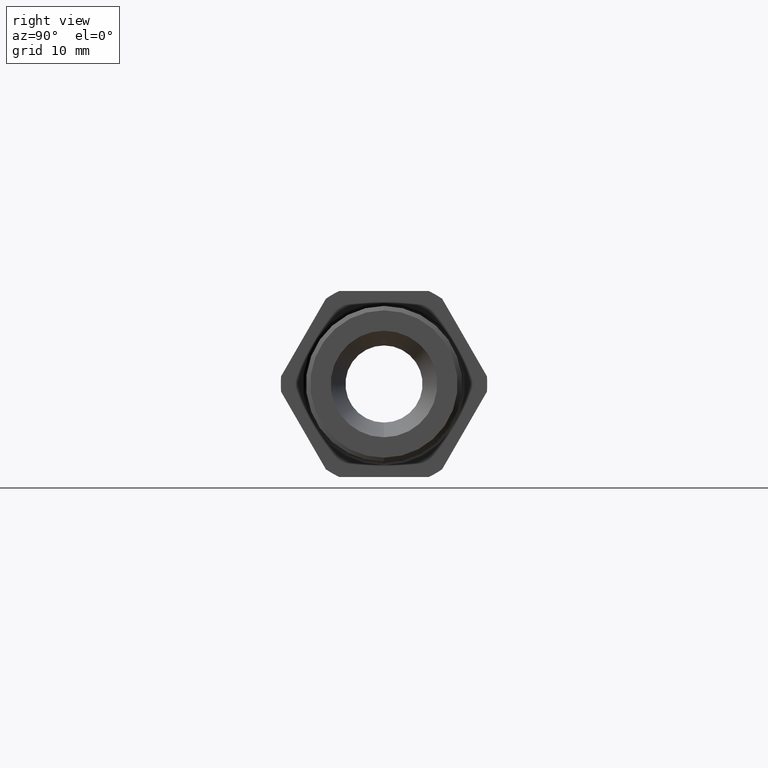
[diagram: clean part render]
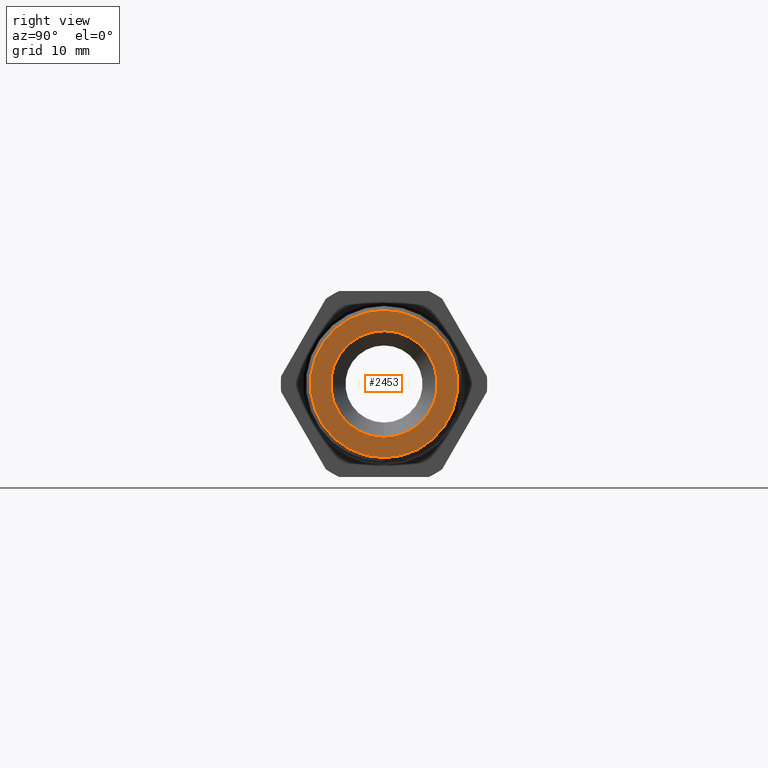
[diagram: same view with one face highlighted and labeled with its STEP entity id]
A machine part, right view. The second image highlights one B-rep face of the part: STEP entity #2453.
In plain terms, the highlighted planar face has unit normal (1, 0, 0).
Its self-contained STEP definition (entity closure, byte-faithful):
#112 = ORIENTED_EDGE ( 'NONE', *, *, #499, .F. ) ;
#131 = EDGE_CURVE ( 'NONE', #500, #497, #1044, .T. ) ;
#132 = ORIENTED_EDGE ( 'NONE', *, *, #131, .F. ) ;
#156 = EDGE_CURVE ( 'NONE', #233, #157, #1110, .T. ) ;
#157 = VERTEX_POINT ( 'NONE', #1104 ) ;
#233 = VERTEX_POINT ( 'NONE', #1541 ) ;
#497 = VERTEX_POINT ( 'NONE', #2978 ) ;
#499 = EDGE_CURVE ( 'NONE', #497, #500, #2977, .T. ) ;
#500 = VERTEX_POINT ( 'NONE', #2972 ) ;
#1040 = DIRECTION ( 'NONE',  ( 0.0000000000000000000, 0.0000000000000000000, -1.000000000000000000 ) ) ;
#1041 = DIRECTION ( 'NONE',  ( 1.000000000000000000, 0.0000000000000000000, 0.0000000000000000000 ) ) ;
#1042 = CARTESIAN_POINT ( 'NONE',  ( 0.03999999999999998000, 0.0000000000000000000, 0.0000000000000000000 ) ) ;
#1043 = AXIS2_PLACEMENT_3D ( 'NONE', #1042, #1041, #1040 ) ;
#1044 = CIRCLE ( 'NONE', #1043, 0.2693958422163621500 ) ;
#1104 = CARTESIAN_POINT ( 'NONE',  ( 0.03999999999999998000, 0.0000000000000000000, -0.3724003163966265700 ) ) ;
#1106 = DIRECTION ( 'NONE',  ( 0.0000000000000000000, 0.0000000000000000000, -1.000000000000000000 ) ) ;
#1107 = DIRECTION ( 'NONE',  ( -1.000000000000000000, 0.0000000000000000000, 0.0000000000000000000 ) ) ;
#1108 = CARTESIAN_POINT ( 'NONE',  ( 0.03999999999999998000, 0.0000000000000000000, 0.0000000000000000000 ) ) ;
#1109 = AXIS2_PLACEMENT_3D ( 'NONE', #1108, #1107, #1106 ) ;
#1110 = CIRCLE ( 'NONE', #1109, 0.3724003163966265700 ) ;
#1541 = CARTESIAN_POINT ( 'NONE',  ( 0.03999999999999998000, 4.560588554765903300E-017, 0.3724003163966265700 ) ) ;
#2435 = ORIENTED_EDGE ( 'NONE', *, *, #156, .F. ) ;
#2440 = EDGE_CURVE ( 'NONE', #157, #233, #4534, .T. ) ;
#2441 = EDGE_LOOP ( 'NONE', ( #2442, #2435 ) ) ;
#2442 = ORIENTED_EDGE ( 'NONE', *, *, #2440, .F. ) ;
#2453 = ADVANCED_FACE ( 'NONE', ( #4581, #4580 ), #4579, .T. ) ;
#2502 = EDGE_LOOP ( 'NONE', ( #132, #112 ) ) ;
#2972 = CARTESIAN_POINT ( 'NONE',  ( 0.03999999999999998000, 0.0000000000000000000, -0.2693958422163621500 ) ) ;
#2973 = DIRECTION ( 'NONE',  ( 0.0000000000000000000, 0.0000000000000000000, -1.000000000000000000 ) ) ;
#2974 = DIRECTION ( 'NONE',  ( 1.000000000000000000, 0.0000000000000000000, 0.0000000000000000000 ) ) ;
#2975 = CARTESIAN_POINT ( 'NONE',  ( 0.03999999999999998000, 0.0000000000000000000, 0.0000000000000000000 ) ) ;
#2976 = AXIS2_PLACEMENT_3D ( 'NONE', #2975, #2974, #2973 ) ;
#2977 = CIRCLE ( 'NONE', #2976, 0.2693958422163621500 ) ;
#2978 = CARTESIAN_POINT ( 'NONE',  ( 0.03999999999999998000, 3.299147558738732800E-017, 0.2693958422163621500 ) ) ;
#4530 = DIRECTION ( 'NONE',  ( 0.0000000000000000000, 0.0000000000000000000, -1.000000000000000000 ) ) ;
#4531 = DIRECTION ( 'NONE',  ( -1.000000000000000000, 0.0000000000000000000, 0.0000000000000000000 ) ) ;
#4532 = CARTESIAN_POINT ( 'NONE',  ( 0.03999999999999998000, 0.0000000000000000000, 0.0000000000000000000 ) ) ;
#4533 = AXIS2_PLACEMENT_3D ( 'NONE', #4532, #4531, #4530 ) ;
#4534 = CIRCLE ( 'NONE', #4533, 0.3724003163966265700 ) ;
#4575 = DIRECTION ( 'NONE',  ( 0.0000000000000000000, 0.0000000000000000000, -1.000000000000000000 ) ) ;
#4576 = DIRECTION ( 'NONE',  ( 1.000000000000000000, 0.0000000000000000000, 0.0000000000000000000 ) ) ;
#4577 = CARTESIAN_POINT ( 'NONE',  ( 0.03999999999999998000, 0.2693958422163621500, 0.0000000000000000000 ) ) ;
#4578 = AXIS2_PLACEMENT_3D ( 'NONE', #4577, #4576, #4575 ) ;
#4579 = PLANE ( 'NONE',  #4578 ) ;
#4580 = FACE_BOUND ( 'NONE', #2502, .T. ) ;
#4581 = FACE_OUTER_BOUND ( 'NONE', #2441, .T. ) ;